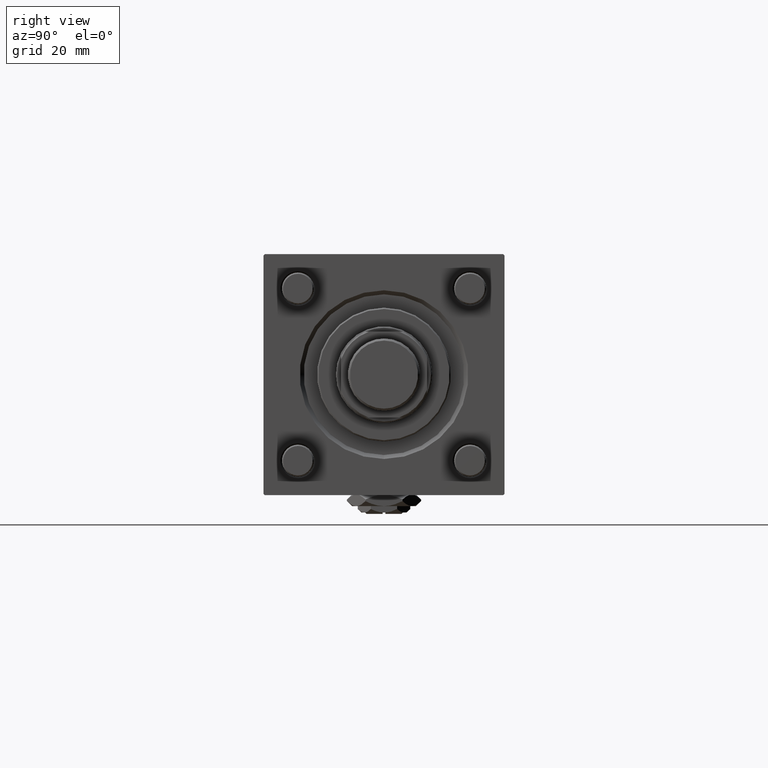
[diagram: clean part render]
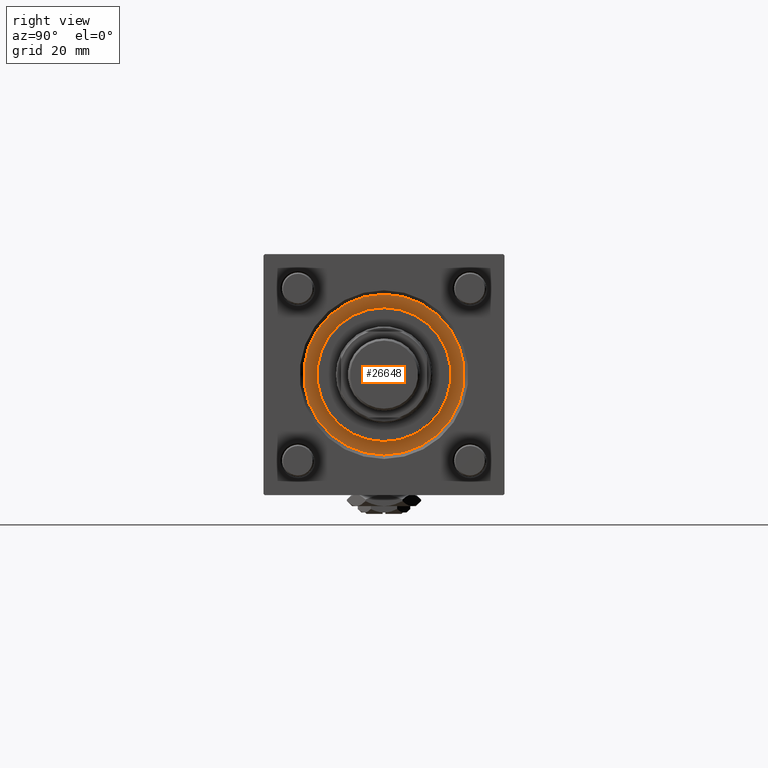
[diagram: same view with one face highlighted and labeled with its STEP entity id]
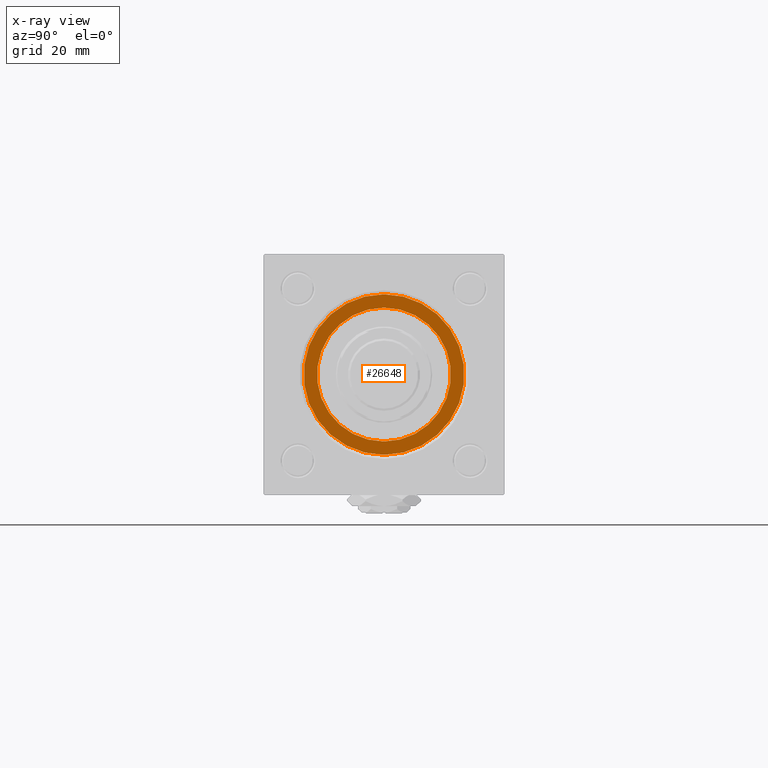
[diagram: x-ray of the same camera — body ghosted, the highlighted face saturated]
A machine part, right view. The second image highlights one B-rep face of the part: STEP entity #26648.
The next image is the same camera in x-ray: the body ghosted, the highlighted face saturated — about 0% of this face is hidden behind the body in this view.
In plain terms, the highlighted planar face has unit normal (1, 0, 0).
Its self-contained STEP definition (entity closure, byte-faithful):
#250 = EDGE_LOOP ( 'NONE', ( #54731, #52916 ) ) ;
#1026 = CIRCLE ( 'NONE', #21026, 25.00000000000000000 ) ;
#1267 = CARTESIAN_POINT ( 'NONE',  ( 25.00000000000000000, 3.061616997868383043E-15, 28.69999999999999929 ) ) ;
#1627 = DIRECTION ( 'NONE',  ( 1.000000000000000000, 0.000000000000000000, 0.000000000000000000 ) ) ;
#2181 = FACE_BOUND ( 'NONE', #56540, .T. ) ;
#2473 = CARTESIAN_POINT ( 'NONE',  ( 0.000000000000000000, 0.000000000000000000, 28.69999999999999929 ) ) ;
#3391 = EDGE_CURVE ( 'NONE', #5662, #18010, #42294, .T. ) ;
#3953 = DIRECTION ( 'NONE',  ( 0.000000000000000000, 0.000000000000000000, 1.000000000000000000 ) ) ;
#5113 = CARTESIAN_POINT ( 'NONE',  ( 0.000000000000000000, 0.000000000000000000, 28.69999999999999929 ) ) ;
#5155 = DIRECTION ( 'NONE',  ( 0.000000000000000000, 0.000000000000000000, 1.000000000000000000 ) ) ;
#5662 = VERTEX_POINT ( 'NONE', #52509 ) ;
#6555 = VERTEX_POINT ( 'NONE', #10173 ) ;
#8677 = CIRCLE ( 'NONE', #41954, 25.00000000000000000 ) ;
#10173 = CARTESIAN_POINT ( 'NONE',  ( -25.00000000000000000, 0.000000000000000000, 28.69999999999999929 ) ) ;
#16182 = PLANE ( 'NONE',  #55127 ) ;
#17132 = DIRECTION ( 'NONE',  ( 1.000000000000000000, 0.000000000000000000, 0.000000000000000000 ) ) ;
#18010 = VERTEX_POINT ( 'NONE', #19365 ) ;
#18267 = DIRECTION ( 'NONE',  ( 1.000000000000000000, 0.000000000000000000, 0.000000000000000000 ) ) ;
#19365 = CARTESIAN_POINT ( 'NONE',  ( -30.00000000000000000, 0.000000000000000000, 28.69999999999999929 ) ) ;
#19498 = DIRECTION ( 'NONE',  ( 0.000000000000000000, 0.000000000000000000, 1.000000000000000000 ) ) ;
#20357 = FACE_OUTER_BOUND ( 'NONE', #250, .T. ) ;
#20755 = VERTEX_POINT ( 'NONE', #1267 ) ;
#21026 = AXIS2_PLACEMENT_3D ( 'NONE', #52893, #48122, #17132 ) ;
#23309 = CARTESIAN_POINT ( 'NONE',  ( 0.000000000000000000, 0.000000000000000000, 28.69999999999999929 ) ) ;
#26648 = ADVANCED_FACE ( 'NONE', ( #2181, #20357 ), #16182, .T. ) ;
#31820 = CIRCLE ( 'NONE', #39440, 30.00000000000000000 ) ;
#33491 = EDGE_CURVE ( 'NONE', #6555, #20755, #1026, .T. ) ;
#33931 = EDGE_CURVE ( 'NONE', #20755, #6555, #8677, .T. ) ;
#35425 = ORIENTED_EDGE ( 'NONE', *, *, #33491, .F. ) ;
#36822 = ORIENTED_EDGE ( 'NONE', *, *, #33931, .F. ) ;
#37980 = CARTESIAN_POINT ( 'NONE',  ( 0.000000000000000000, 0.000000000000000000, 28.69999999999999929 ) ) ;
#39128 = DIRECTION ( 'NONE',  ( 1.000000000000000000, 0.000000000000000000, -0.000000000000000000 ) ) ;
#39440 = AXIS2_PLACEMENT_3D ( 'NONE', #5113, #3953, #45344 ) ;
#41954 = AXIS2_PLACEMENT_3D ( 'NONE', #37980, #19498, #1627 ) ;
#42294 = CIRCLE ( 'NONE', #56589, 30.00000000000000000 ) ;
#43943 = EDGE_CURVE ( 'NONE', #18010, #5662, #31820, .T. ) ;
#45344 = DIRECTION ( 'NONE',  ( 1.000000000000000000, 0.000000000000000000, 0.000000000000000000 ) ) ;
#48122 = DIRECTION ( 'NONE',  ( 0.000000000000000000, 0.000000000000000000, 1.000000000000000000 ) ) ;
#52509 = CARTESIAN_POINT ( 'NONE',  ( 30.00000000000000000, 3.673940397442059178E-15, 28.69999999999999929 ) ) ;
#52536 = DIRECTION ( 'NONE',  ( 0.000000000000000000, 0.000000000000000000, 1.000000000000000000 ) ) ;
#52893 = CARTESIAN_POINT ( 'NONE',  ( 0.000000000000000000, 0.000000000000000000, 28.69999999999999929 ) ) ;
#52916 = ORIENTED_EDGE ( 'NONE', *, *, #3391, .T. ) ;
#54731 = ORIENTED_EDGE ( 'NONE', *, *, #43943, .T. ) ;
#55127 = AXIS2_PLACEMENT_3D ( 'NONE', #2473, #52536, #39128 ) ;
#56540 = EDGE_LOOP ( 'NONE', ( #35425, #36822 ) ) ;
#56589 = AXIS2_PLACEMENT_3D ( 'NONE', #23309, #5155, #18267 ) ;